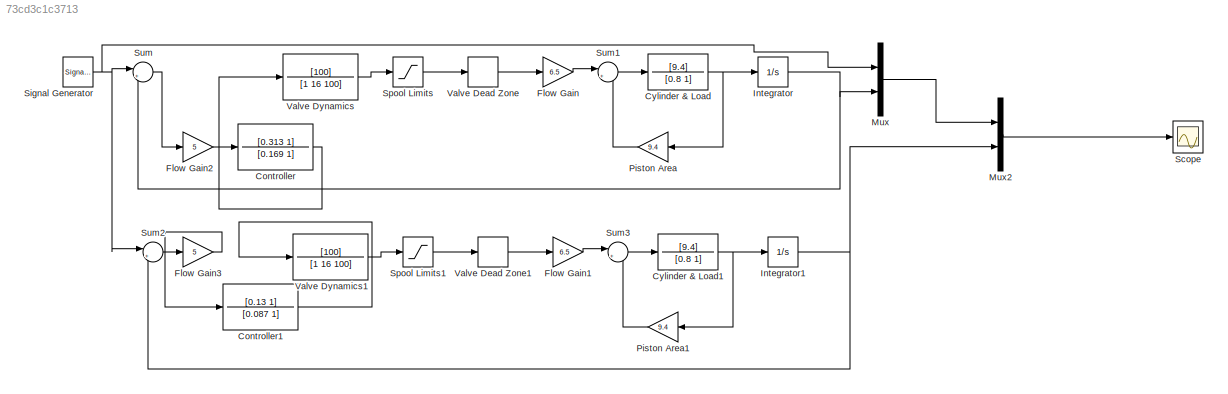
MODEL slx_73cd3c1c3713
KIND model
BLOCK [TransferFcn] Controller
  Denominator = [0.169 1]
  Numerator = [0.313 1]
BLOCK [TransferFcn] Controller1
  Denominator = [0.087 1]
  Numerator = [0.13 1]
BLOCK [TransferFcn] Cylinder & Load
  Denominator = [0.8 1]
  Numerator = [9.4]
BLOCK [TransferFcn] Cylinder & Load1
  Denominator = [0.8 1]
  Numerator = [9.4]
BLOCK [Gain] Flow Gain
  Gain = 6.5
  OutDataTypeStr = Inherit: Inherit via internal rule
  ParamDataTypeStr = Inherit: Inherit via internal rule
  SaturateOnIntegerOverflow = off
BLOCK [Gain] Flow Gain1
  Gain = 6.5
  OutDataTypeStr = Inherit: Inherit via internal rule
  ParamDataTypeStr = Inherit: Inherit via internal rule
  SaturateOnIntegerOverflow = off
BLOCK [Gain] Flow Gain2
  Gain = 5
  OutDataTypeStr = Inherit: Inherit via internal rule
  ParamDataTypeStr = Inherit: Inherit via internal rule
  SaturateOnIntegerOverflow = off
BLOCK [Gain] Flow Gain3
  Gain = 5
  OutDataTypeStr = Inherit: Inherit via internal rule
  ParamDataTypeStr = Inherit: Inherit via internal rule
  SaturateOnIntegerOverflow = off
BLOCK [Integrator] Integrator
  Ports = [1, 1]
BLOCK [Integrator] Integrator1
  Ports = [1, 1]
BLOCK [Mux] Mux
  DisplayOption = bar
  Inputs = 2
  Ports = [2, 1]
BLOCK [Mux] Mux2
  DisplayOption = bar
  Inputs = 2
  Ports = [2, 1]
BLOCK [Gain] Piston Area
  Gain = 9.4
  OutDataTypeStr = Inherit: Inherit via internal rule
  ParamDataTypeStr = Inherit: Inherit via internal rule
  SaturateOnIntegerOverflow = off
BLOCK [Gain] Piston Area1
  Gain = 9.4
  OutDataTypeStr = Inherit: Inherit via internal rule
  ParamDataTypeStr = Inherit: Inherit via internal rule
  SaturateOnIntegerOverflow = off
BLOCK [Scope] Scope
  DataFormat = StructureWithTime
  Floating = off
  NumInputPorts = 1
  Ports = [1]
  SampleTime = 0
  ShowLegends = off
BLOCK [SignalGenerator] Signal Generator
  Frequency = 0.1
  Ports = [0, 1]
  WaveForm = square
BLOCK [Saturate] Spool Limits
  InputPortMap = u0
  LowerLimit = -inf
  Ports = [1, 1]
  UpperLimit = inf
BLOCK [Saturate] Spool Limits1
  InputPortMap = u0
  LowerLimit = -inf
  Ports = [1, 1]
  UpperLimit = inf
BLOCK [Sum] Sum
  IconShape = round
  InputSameDT = off
  Inputs = |+-
  OutDataTypeStr = Inherit: Inherit via internal rule
  Ports = [2, 1]
  SaturateOnIntegerOverflow = off
BLOCK [Sum] Sum1
  IconShape = round
  InputSameDT = off
  Inputs = |+-
  OutDataTypeStr = Inherit: Inherit via internal rule
  Ports = [2, 1]
  SaturateOnIntegerOverflow = off
BLOCK [Sum] Sum2
  IconShape = round
  InputSameDT = off
  Inputs = |+-
  OutDataTypeStr = Inherit: Inherit via internal rule
  Ports = [2, 1]
  SaturateOnIntegerOverflow = off
BLOCK [Sum] Sum3
  IconShape = round
  InputSameDT = off
  Inputs = |+-
  OutDataTypeStr = Inherit: Inherit via internal rule
  Ports = [2, 1]
  SaturateOnIntegerOverflow = off
BLOCK [DeadZone] Valve Dead Zone
  LowerValue = 0
  UpperValue = 0
BLOCK [DeadZone] Valve Dead Zone1
  LowerValue = 0
  UpperValue = 0
BLOCK [TransferFcn] Valve Dynamics
  Denominator = [1 16 100]
  Numerator = [100]
BLOCK [TransferFcn] Valve Dynamics1
  Denominator = [1 16 100]
  Numerator = [100]
LINE Controller1:1 -> Valve Dynamics1:1
LINE Controller:1 -> Valve Dynamics:1
NET Cylinder & Load1:1 -> Integrator1:1, Piston Area1:1
NET Cylinder & Load:1 -> Integrator:1, Piston Area:1
LINE Flow Gain1:1 -> Sum3:1
LINE Flow Gain2:1 -> Controller:1
LINE Flow Gain3:1 -> Controller1:1
LINE Flow Gain:1 -> Sum1:1
NET Integrator1:1 -> Mux2:2, Sum2:2
NET Integrator:1 -> Mux:2, Sum:2
LINE Mux2:1 -> Scope:1
LINE Mux:1 -> Mux2:1
LINE Piston Area1:1 -> Sum3:2
LINE Piston Area:1 -> Sum1:2
NET Signal Generator:1 -> Mux:1, Sum2:1, Sum:1
LINE Spool Limits1:1 -> Valve Dead Zone1:1
LINE Spool Limits:1 -> Valve Dead Zone:1
LINE Sum1:1 -> Cylinder & Load:1
LINE Sum2:1 -> Flow Gain3:1
LINE Sum3:1 -> Cylinder & Load1:1
LINE Sum:1 -> Flow Gain2:1
LINE Valve Dead Zone1:1 -> Flow Gain1:1
LINE Valve Dead Zone:1 -> Flow Gain:1
LINE Valve Dynamics1:1 -> Spool Limits1:1
LINE Valve Dynamics:1 -> Spool Limits:1
note: NET lines group one-source signal fan-out (src -> all destinations, sorted); 1:1 wires keep LINE
